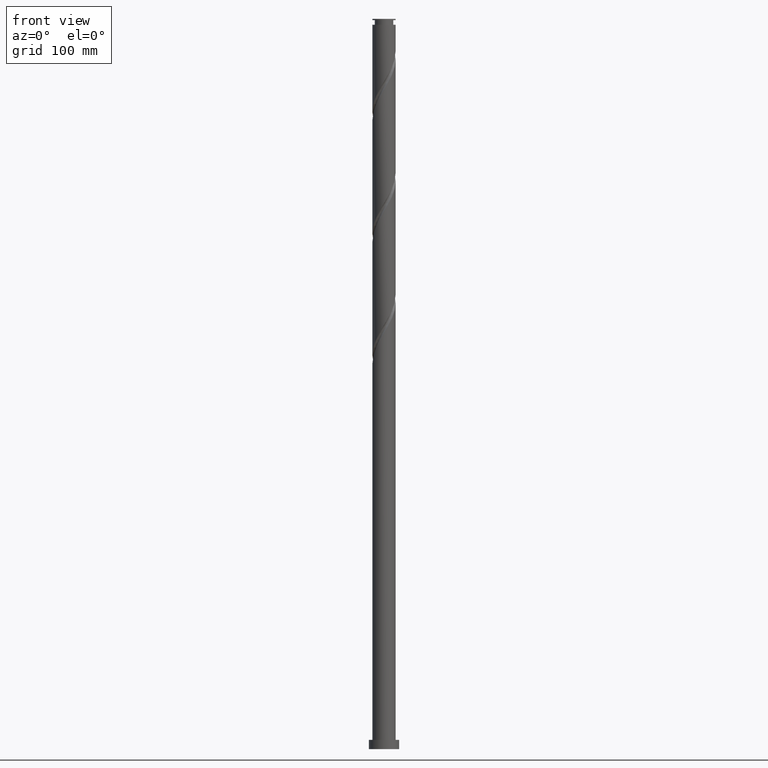
[diagram: clean part render]
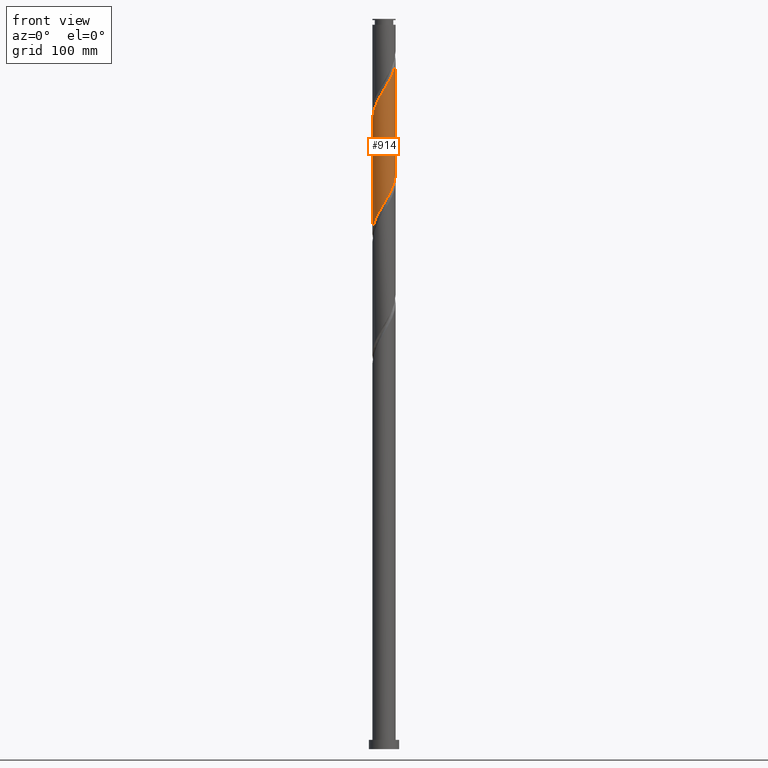
[diagram: same view with one face highlighted and labeled with its STEP entity id]
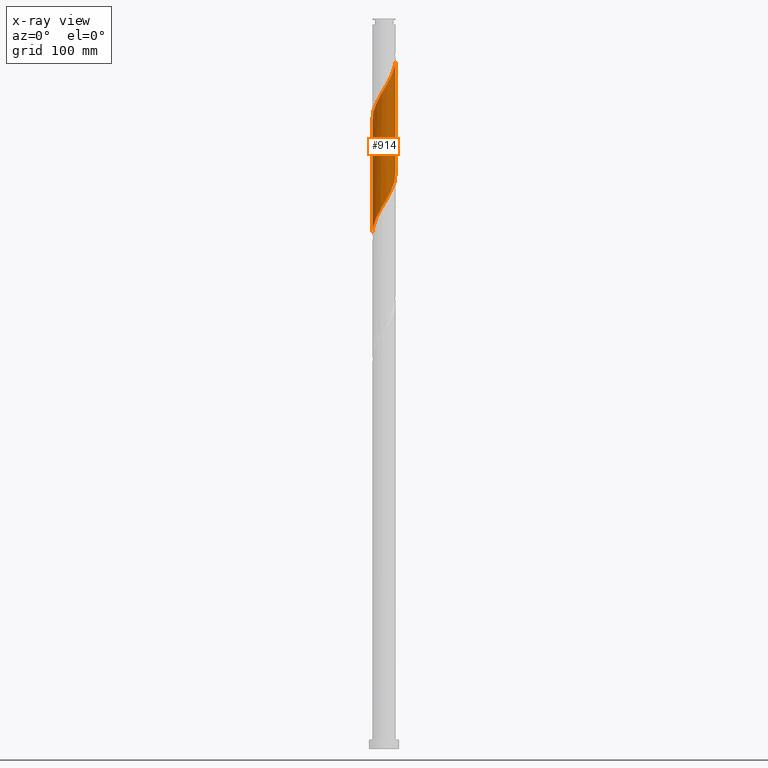
[diagram: x-ray of the same camera — body ghosted, the highlighted face saturated]
A machine part, front view. The second image highlights one B-rep face of the part: STEP entity #914.
The next image is the same camera in x-ray: the body ghosted, the highlighted face saturated — about 0% of this face is hidden behind the body in this view.
In plain terms, the highlighted cylindrical surface (edge-blend (fillet) strip) has radius 10 mm, axis along (-0, -0, -1).
Its self-contained STEP definition (entity closure, byte-faithful):
#26 = CARTESIAN_POINT ( 'NONE',  ( 9.841984169373612090, -1.998500123414085561, 493.6669687088191267 ) ) ;
#36 = VERTEX_POINT ( 'NONE', #888 ) ;
#39 = CARTESIAN_POINT ( 'NONE',  ( 5.926933237340483274, -8.107411272014974912, 481.3140275323485184 ) ) ;
#66 = CARTESIAN_POINT ( 'NONE',  ( 9.970473777339156740, -0.7678884394185103712, 594.0346157676426628 ) ) ;
#72 = CARTESIAN_POINT ( 'NONE',  ( 3.756837045000868791, -9.267479453298477665, 575.5052040029369209 ) ) ;
#87 = CARTESIAN_POINT ( 'NONE',  ( -9.659608383748043536, -2.586883428495467374, 448.8875569441132143 ) ) ;
#159 = CARTESIAN_POINT ( 'NONE',  ( -10.00000000000000178, 6.931576953415743534E-15, 444.5151774835131846 ) ) ;
#165 = CARTESIAN_POINT ( 'NONE',  ( -0.1553464957960916382, -9.998793300506012116, 470.5052040029368072 ) ) ;
#175 = DIRECTION ( 'NONE',  ( -0.000000000000000000, -0.000000000000000000, -1.000000000000000000 ) ) ;
#179 = CARTESIAN_POINT ( 'NONE',  ( -6.175933789484160386, -7.919374783491094583, 459.6963804735250960 ) ) ;
#183 = CARTESIAN_POINT ( 'NONE',  ( 10.00000000000001954, 9.262020929133045026E-16, 595.3187599341250689 ) ) ;
#193 = CARTESIAN_POINT ( 'NONE',  ( 3.467124458470600246, -9.379714707253892669, 476.6816745911721682 ) ) ;
#205 = DIRECTION ( 'NONE',  ( -0.000000000000000000, -0.000000000000000000, -1.000000000000000000 ) ) ;
#214 = CARTESIAN_POINT ( 'NONE',  ( 5.131608130647609123, -8.582924792486027243, 479.7699098852896782 ) ) ;
#218 = VECTOR ( 'NONE', #205, 1000.000000000000000 ) ;
#222 = CARTESIAN_POINT ( 'NONE',  ( 7.525958078366993931, -6.649707522602001930, 583.2257922382308379 ) ) ;
#230 = CARTESIAN_POINT ( 'NONE',  ( 9.419898332860585199, -3.481977962603651555, 589.4022628264661989 ) ) ;
#342 = CARTESIAN_POINT ( 'NONE',  ( -1.989974874213249034, -9.799999999999998934, 467.4169687088192973 ) ) ;
#358 = CARTESIAN_POINT ( 'NONE',  ( 8.881308828848109016, -4.595906165994319892, 489.0346157676427197 ) ) ;
#376 = CARTESIAN_POINT ( 'NONE',  ( -1.684572021217823012, -9.857089687394065436, 566.2404981205838794 ) ) ;
#400 = CARTESIAN_POINT ( 'NONE',  ( 2.898078607385141670, -9.615601672225386309, 573.9610863558779101 ) ) ;
#403 = CARTESIAN_POINT ( 'NONE',  ( -9.419898332860572765, -3.481977962603644450, 450.4316745911721114 ) ) ;
#537 = CARTESIAN_POINT ( 'NONE',  ( 1.684572021217821014, -9.857089687394049449, 473.5934392970543740 ) ) ;
#544 = FACE_OUTER_BOUND ( 'NONE', #837, .T. ) ;
#559 = CARTESIAN_POINT ( 'NONE',  ( -5.395764636050379259, -8.419366008931321588, 461.2404981205838794 ) ) ;
#567 = CARTESIAN_POINT ( 'NONE',  ( -9.574583210674504130, -2.885715914962903472, 547.7110863558780238 ) ) ;
#570 = CARTESIAN_POINT ( 'NONE',  ( -10.00000000000000000, -0.3845118788768224216, 445.1585832355729622 ) ) ;
#585 = CARTESIAN_POINT ( 'NONE',  ( 9.019796612071711905, -4.317785205039720964, 587.8581451794073018 ) ) ;
#597 = CARTESIAN_POINT ( 'NONE',  ( -8.881308828848125003, -4.595906165994323445, 550.7993216499955906 ) ) ;
#615 = CARTESIAN_POINT ( 'NONE',  ( -9.019796612071706576, -4.317785205039711194, 451.9757922382310085 ) ) ;
#697 = DIRECTION ( 'NONE',  ( -0.000000000000000000, -0.000000000000000000, -1.000000000000000000 ) ) ;
#713 = CARTESIAN_POINT ( 'NONE',  ( 0.7711781494491763977, -10.01318827323739669, 472.0493216499957043 ) ) ;
#726 = CARTESIAN_POINT ( 'NONE',  ( 2.597965892986459302, -9.700991101550700435, 475.1375569441133280 ) ) ;
#737 = CARTESIAN_POINT ( 'NONE',  ( -7.885592126811187264, -6.149588344724690181, 553.8875569441131574 ) ) ;
#745 = CARTESIAN_POINT ( 'NONE',  ( -9.941806644708199414, -1.077256069482183332, 544.6228510617602296 ) ) ;
#753 = CARTESIAN_POINT ( 'NONE',  ( 10.00000000000001066, -0.3845118788768938090, 594.6753541820652345 ) ) ;
#837 = EDGE_LOOP ( 'NONE', ( #2180, #1525, #1666, #1047 ) ) ;
#843 =( BOUNDED_CURVE ( )  B_SPLINE_CURVE ( 2, ( #1556, #892, #1372, #26, #2048, #1208, #358, #1715, #1689, #2082, #1196, #39, #214, #1874, #193, #726, #537, #713, #165, #901, #342, #1025, #1579, #1386, #559, #179, #867, #1543, #2061, #920, #615, #403, #87, #1750, #1269, #570, #1292 ),
 .UNSPECIFIED., .F., .T. ) 
 B_SPLINE_CURVE_WITH_KNOTS ( ( 3, 2, 2, 2, 2, 2, 2, 2, 2, 2, 2, 2, 2, 2, 2, 2, 2, 2, 3 ),
 ( 0.5545293573162904943, 0.5588235294117647189, 0.5661764705882352811, 0.5735294117647058432, 0.5808823529411765163, 0.5882352941176470784, 0.5955882352941176405, 0.6029411764705882026, 0.6102941176470588758, 0.6176470588235294379, 0.6250000000000000000, 0.6323529411764705621, 0.6397058823529411242, 0.6470588235294117974, 0.6544117647058823595, 0.6617647058823529216, 0.6691176470588234837, 0.6764705882352941568, 0.6795293573162904943 ),
 .UNSPECIFIED. ) 
 CURVE ( )  GEOMETRIC_REPRESENTATION_ITEM ( )  RATIONAL_B_SPLINE_CURVE ( ( 0.9072066346052956032, 0.9068261157890626922, 0.9090909090909340406, 0.9052128875409651831, 0.9090909090909340406, 0.9052128875409651831, 0.9090909090909340406, 0.9052128875409651831, 0.9090909090909340406, 0.9052128875409651831, 0.9090909090909340406, 0.9052128875409651831, 0.9090909090909340406, 0.9052128875409651831, 0.9090909090909340406, 0.9052128875409651831, 0.9090909090909340406, 0.9052128875409651831, 0.9090909090909340406, 0.9052128875409651831, 0.9090909090909340406, 0.9052128875409651831, 0.9090909090909340406, 0.9052128875409651831, 0.9090909090909340406, 0.9052128875409651831, 0.9090909090909340406, 0.9052128875409651831, 0.9090909090909340406, 0.9052128875409651831, 0.9090909090909340406, 0.9052128875409651831, 0.9090909090909340406, 0.9052128875409651831, 0.9090909090909340406, 0.9074776808428364205, 0.9072066346052956032 ) ) 
 REPRESENTATION_ITEM ( '' )  );
#867 = CARTESIAN_POINT ( 'NONE',  ( -6.850945933925570941, -7.284541153046544260, 458.1522628264662558 ) ) ;
#888 = CARTESIAN_POINT ( 'NONE',  ( 10.00000000000000178, -7.319984282701970376E-15, 497.0151774835131846 ) ) ;
#892 = CARTESIAN_POINT ( 'NONE',  ( 10.00000000000000178, -0.5401998367926492683, 496.1112582515004874 ) ) ;
#901 = CARTESIAN_POINT ( 'NONE',  ( -1.081871141041355289, -9.984398327774622217, 468.9610863558779670 ) ) ;
#908 = CARTESIAN_POINT ( 'NONE',  ( 8.072826484824918936, -5.901649985038897483, 584.7699098852898487 ) ) ;
#914 = ADVANCED_FACE ( 'NONE', ( #544 ), #1033, .T. ) ;
#916 = CARTESIAN_POINT ( 'NONE',  ( -10.00000000000001954, -0.5401998367926056366, 543.7226791661377092 ) ) ;
#920 = CARTESIAN_POINT ( 'NONE',  ( -8.619694891282831506, -5.153592447475782379, 453.5199098852896782 ) ) ;
#927 = CARTESIAN_POINT ( 'NONE',  ( -7.315748847901506480, -6.880296063972457077, 555.4316745911720545 ) ) ;
#1015 = EDGE_CURVE ( 'NONE', #1416, #36, #1528, .T. ) ;
#1025 = CARTESIAN_POINT ( 'NONE',  ( -2.898078607385138561, -9.615601672225377428, 465.8728510617602296 ) ) ;
#1033 = CYLINDRICAL_SURFACE ( 'NONE', #2093, 10.00000000000000178 ) ;
#1037 = LINE ( 'NONE', #2074, #218 ) ;
#1047 = ORIENTED_EDGE ( 'NONE', *, *, #1986, .F. ) ;
#1058 = CARTESIAN_POINT ( 'NONE',  ( 4.615595482616599909, -8.919357234371563692, 577.0493216499951359 ) ) ;
#1067 = CARTESIAN_POINT ( 'NONE',  ( 5.395764636050384588, -8.419366008931334022, 578.5934392970546014 ) ) ;
#1077 = CARTESIAN_POINT ( 'NONE',  ( -5.131608130647619781, -8.582924792486039678, 560.0640275323485184 ) ) ;
#1099 = CARTESIAN_POINT ( 'NONE',  ( -6.621341042621000206, -7.493853667993722212, 556.9757922382310653 ) ) ;
#1196 = CARTESIAN_POINT ( 'NONE',  ( 6.621341042620987771, -7.493853667993711554, 482.8581451794074155 ) ) ;
#1208 = CARTESIAN_POINT ( 'NONE',  ( 9.307182251975374854, -3.772931706511718719, 490.5787334147015031 ) ) ;
#1211 = EDGE_CURVE ( 'NONE', #1712, #1416, #1860, .T. ) ;
#1238 = CARTESIAN_POINT ( 'NONE',  ( 1.989974874213248146, -9.800000000000014921, 572.4169687088193541 ) ) ;
#1245 = VECTOR ( 'NONE', #697, 1000.000000000000000 ) ;
#1249 = CARTESIAN_POINT ( 'NONE',  ( -9.307182251975389065, -3.772931706511726269, 549.2552040029365799 ) ) ;
#1257 = CARTESIAN_POINT ( 'NONE',  ( 9.659608383748059524, -2.586883428495470927, 590.9463804735249823 ) ) ;
#1269 = CARTESIAN_POINT ( 'NONE',  ( -9.970473777339142529, -0.7678884394185052642, 445.7993216499957043 ) ) ;
#1280 = CARTESIAN_POINT ( 'NONE',  ( -8.455435405720860942, -5.418880625476918844, 552.3434392970543740 ) ) ;
#1292 = CARTESIAN_POINT ( 'NONE',  ( -10.00000000000000178, 6.931576953415744323E-15, 444.5151774835131846 ) ) ;
#1356 = CARTESIAN_POINT ( 'NONE',  ( 10.00000000000000178, 1.224646799147353454E-15, 630.0000000000000000 ) ) ;
#1372 = CARTESIAN_POINT ( 'NONE',  ( 9.941806644708183427, -1.077256069482188439, 495.2110863558779101 ) ) ;
#1386 = CARTESIAN_POINT ( 'NONE',  ( -4.615595482616598133, -8.919357234371549481, 462.7846157676427197 ) ) ;
#1409 = CARTESIAN_POINT ( 'NONE',  ( 0.1553464957960880299, -9.998793300506024551, 569.3287334147013325 ) ) ;
#1416 = VERTEX_POINT ( 'NONE', #183 ) ;
#1418 = CARTESIAN_POINT ( 'NONE',  ( -9.841984169373624525, -1.998500123414084673, 546.1669687088192404 ) ) ;
#1425 = CARTESIAN_POINT ( 'NONE',  ( -3.467124458470604687, -9.379714707253905104, 563.1522628264660852 ) ) ;
#1512 = DIRECTION ( 'NONE',  ( -1.000000000000000000, 0.000000000000000000, 0.000000000000000000 ) ) ;
#1525 = ORIENTED_EDGE ( 'NONE', *, *, #1211, .F. ) ;
#1528 = LINE ( 'NONE', #1356, #1245 ) ;
#1537 = VERTEX_POINT ( 'NONE', #159 ) ;
#1543 = CARTESIAN_POINT ( 'NONE',  ( -7.525958078366985937, -6.649707522601991272, 456.6081451794073587 ) ) ;
#1556 = CARTESIAN_POINT ( 'NONE',  ( 10.00000000000000178, -7.319984282701970376E-15, 497.0151774835132414 ) ) ;
#1579 = CARTESIAN_POINT ( 'NONE',  ( -3.756837045000868791, -9.267479453298463454, 464.3287334147014462 ) ) ;
#1585 = CARTESIAN_POINT ( 'NONE',  ( -10.00000000000001776, 1.389303139369956340E-14, 542.8187599341250689 ) ) ;
#1593 = CARTESIAN_POINT ( 'NONE',  ( 9.899318434635530295, -1.691788894387298070, 592.4904981205837657 ) ) ;
#1599 = CARTESIAN_POINT ( 'NONE',  ( -0.7711781494491813937, -10.01318827323741267, 567.7846157676426628 ) ) ;
#1666 = ORIENTED_EDGE ( 'NONE', *, *, #1842, .T. ) ;
#1689 = CARTESIAN_POINT ( 'NONE',  ( 7.885592126811174829, -6.149588344724679523, 485.9463804735250392 ) ) ;
#1712 = VERTEX_POINT ( 'NONE', #1804 ) ;
#1715 = CARTESIAN_POINT ( 'NONE',  ( 8.455435405720850284, -5.418880625476916180, 487.4904981205838794 ) ) ;
#1734 = CARTESIAN_POINT ( 'NONE',  ( 1.081871141041357509, -9.984398327774636428, 570.8728510617601160 ) ) ;
#1745 = CARTESIAN_POINT ( 'NONE',  ( 6.850945933925582487, -7.284541153046554030, 581.6816745911720545 ) ) ;
#1750 = CARTESIAN_POINT ( 'NONE',  ( -9.899318434635519637, -1.691788894387293407, 447.3434392970545446 ) ) ;
#1759 = CARTESIAN_POINT ( 'NONE',  ( 8.619694891282842164, -5.153592447475790372, 586.3140275323486321 ) ) ;
#1804 = CARTESIAN_POINT ( 'NONE',  ( -10.00000000000001776, 1.389303139369956340E-14, 542.8187599341250689 ) ) ;
#1842 = EDGE_CURVE ( 'NONE', #1712, #1537, #1037, .T. ) ;
#1860 =( BOUNDED_CURVE ( )  B_SPLINE_CURVE ( 2, ( #1585, #916, #745, #1418, #567, #1249, #597, #1280, #737, #927, #1099, #2078, #1077, #2098, #1425, #1926, #376, #1599, #1409, #1734, #1238, #400, #72, #1058, #1067, #2106, #1745, #222, #908, #1759, #585, #230, #1257, #1593, #66, #753, #1937 ),
 .UNSPECIFIED., .F., .T. ) 
 B_SPLINE_CURVE_WITH_KNOTS ( ( 3, 2, 2, 2, 2, 2, 2, 2, 2, 2, 2, 2, 2, 2, 2, 2, 2, 2, 3 ),
 ( 0.5545293573162901613, 0.5588235294117647189, 0.5661764705882352811, 0.5735294117647058432, 0.5808823529411764053, 0.5882352941176470784, 0.5955882352941176405, 0.6029411764705883137, 0.6102941176470588758, 0.6176470588235294379, 0.6250000000000000000, 0.6323529411764705621, 0.6397058823529411242, 0.6470588235294116863, 0.6544117647058823595, 0.6617647058823529216, 0.6691176470588235947, 0.6764705882352941568, 0.6795293573162899392 ),
 .UNSPECIFIED. ) 
 CURVE ( )  GEOMETRIC_REPRESENTATION_ITEM ( )  RATIONAL_B_SPLINE_CURVE ( ( 0.9072066346053018204, 0.9068261157890686874, 0.9090909090909401469, 0.9052128875409715114, 0.9090909090909401469, 0.9052128875409715114, 0.9090909090909401469, 0.9052128875409715114, 0.9090909090909401469, 0.9052128875409715114, 0.9090909090909401469, 0.9052128875409715114, 0.9090909090909401469, 0.9052128875409715114, 0.9090909090909401469, 0.9052128875409715114, 0.9090909090909401469, 0.9052128875409715114, 0.9090909090909401469, 0.9052128875409715114, 0.9090909090909401469, 0.9052128875409715114, 0.9090909090909401469, 0.9052128875409715114, 0.9090909090909401469, 0.9052128875409715114, 0.9090909090909401469, 0.9052128875409715114, 0.9090909090909401469, 0.9052128875409715114, 0.9090909090909401469, 0.9052128875409715114, 0.9090909090909401469, 0.9052128875409715114, 0.9090909090909401469, 0.9074776808428428598, 0.9072066346053018204 ) ) 
 REPRESENTATION_ITEM ( '' )  );
#1869 = CARTESIAN_POINT ( 'NONE',  ( 0.000000000000000000, 0.000000000000000000, 630.0000000000000000 ) ) ;
#1874 = CARTESIAN_POINT ( 'NONE',  ( 4.336283023954736748, -9.058438312957086680, 478.2257922382310085 ) ) ;
#1926 = CARTESIAN_POINT ( 'NONE',  ( -2.597965892986468184, -9.700991101550712870, 564.6963804735249823 ) ) ;
#1937 = CARTESIAN_POINT ( 'NONE',  ( 10.00000000000001954, 9.262020929133045026E-16, 595.3187599341251826 ) ) ;
#1986 = EDGE_CURVE ( 'NONE', #36, #1537, #843, .T. ) ;
#2048 = CARTESIAN_POINT ( 'NONE',  ( 9.574583210674491696, -2.885715914962902140, 492.1228510617603433 ) ) ;
#2061 = CARTESIAN_POINT ( 'NONE',  ( -8.072826484824911830, -5.901649985038884161, 455.0640275323485753 ) ) ;
#2074 = CARTESIAN_POINT ( 'NONE',  ( -10.00000000000000178, 0.000000000000000000, 630.0000000000000000 ) ) ;
#2078 = CARTESIAN_POINT ( 'NONE',  ( -5.926933237340491267, -8.107411272014985570, 558.5199098852896213 ) ) ;
#2082 = CARTESIAN_POINT ( 'NONE',  ( 7.315748847901493157, -6.880296063972449971, 484.4022628264661989 ) ) ;
#2093 = AXIS2_PLACEMENT_3D ( 'NONE', #1869, #175, #1512 ) ;
#2098 = CARTESIAN_POINT ( 'NONE',  ( -4.336283023954743854, -9.058438312957092009, 561.6081451794071882 ) ) ;
#2106 = CARTESIAN_POINT ( 'NONE',  ( 6.175933789484166603, -7.919374783491107017, 580.1375569441132711 ) ) ;
#2180 = ORIENTED_EDGE ( 'NONE', *, *, #1015, .F. ) ;